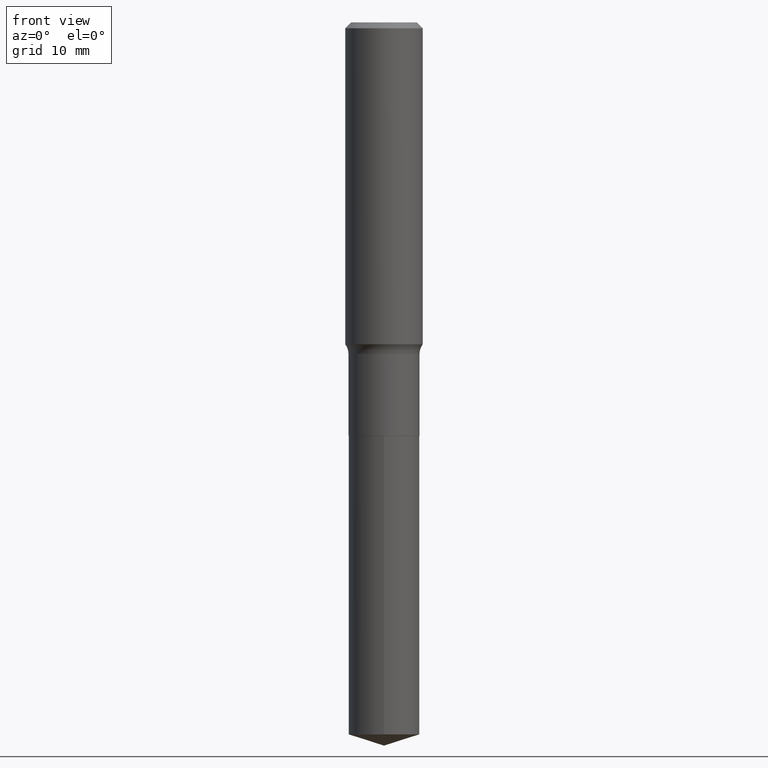
[diagram: clean part render]
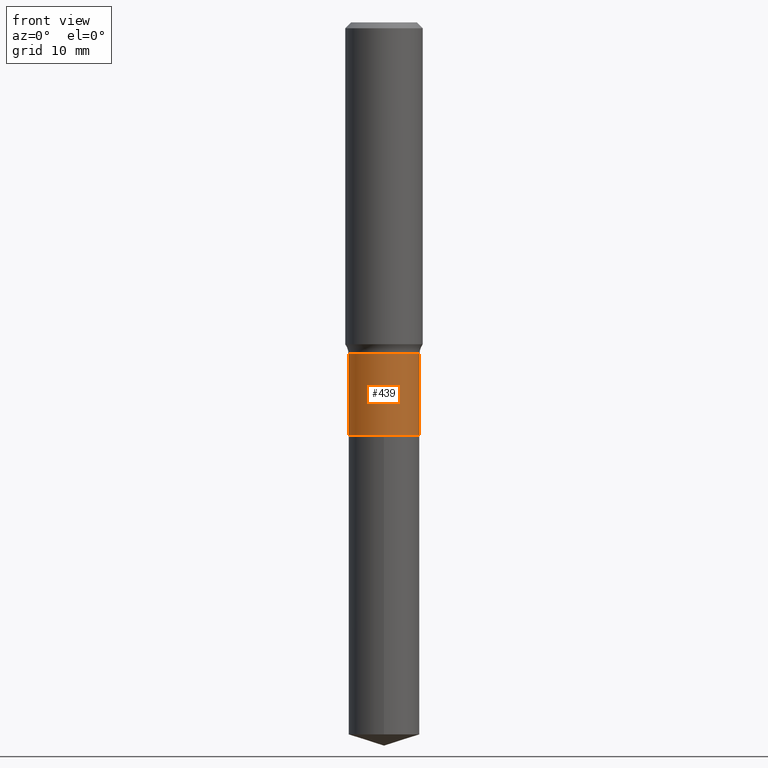
[diagram: same view with one face highlighted and labeled with its STEP entity id]
A machine part, front view. The second image highlights one B-rep face of the part: STEP entity #439.
In plain terms, the highlighted cylindrical surface (edge-blend (fillet) strip) has radius 4.3663 mm, axis along (-0, 0, 1).
Its self-contained STEP definition (entity closure, byte-faithful):
#4 = DIRECTION ( 'NONE',  ( 1.000000000000000000, -6.982962677686268288E-15, 0.000000000000000000 ) ) ;
#19 = VERTEX_POINT ( 'NONE', #367 ) ;
#27 = CARTESIAN_POINT ( 'NONE',  ( 0.000000000000000000, 0.000000000000000000, 0.000000000000000000 ) ) ;
#35 = DIRECTION ( 'NONE',  ( -2.445468806185136877E-29, 3.491481338843145188E-15, 1.000000000000000000 ) ) ;
#53 = CIRCLE ( 'NONE', #327, 0.1718999999999999695 ) ;
#58 = CARTESIAN_POINT ( 'NONE',  ( -0.1718999999999999417, 1.221422962771611806E-15, -8.455649420148180377E-30 ) ) ;
#79 = ORIENTED_EDGE ( 'NONE', *, *, #213, .T. ) ;
#88 = CARTESIAN_POINT ( 'NONE',  ( 0.1718999999999999417, -1.200371284294268847E-15, 8.382147877593211677E-30 ) ) ;
#97 = DIRECTION ( 'NONE',  ( -2.445468806185136877E-29, 3.491481338843145188E-15, 1.000000000000000000 ) ) ;
#137 = ORIENTED_EDGE ( 'NONE', *, *, #287, .T. ) ;
#144 = VECTOR ( 'NONE', #97, 39.37007874015748143 ) ;
#148 = VERTEX_POINT ( 'NONE', #214 ) ;
#151 = AXIS2_PLACEMENT_3D ( 'NONE', #160, #273, #268 ) ;
#160 = CARTESIAN_POINT ( 'NONE',  ( 3.923999246404669862E-29, -5.602430956307710923E-15, -1.604599999999999804 ) ) ;
#200 = VERTEX_POINT ( 'NONE', #265 ) ;
#201 = CARTESIAN_POINT ( 'NONE',  ( 4.889714877967179832E-29, -6.981216937016868873E-15, -1.999499999999999833 ) ) ;
#213 = EDGE_CURVE ( 'NONE', #19, #148, #53, .T. ) ;
#214 = CARTESIAN_POINT ( 'NONE',  ( 0.1718999999999999695, -8.181588221311138114E-15, -1.999499999999999833 ) ) ;
#223 = DIRECTION ( 'NONE',  ( -2.445468806185136597E-29, 3.491481338843145583E-15, 1.000000000000000000 ) ) ;
#225 = CARTESIAN_POINT ( 'NONE',  ( -0.1718999999999999417, -5.070400983890677303E-15, -1.604599999999999804 ) ) ;
#228 = EDGE_CURVE ( 'NONE', #281, #200, #335, .T. ) ;
#265 = CARTESIAN_POINT ( 'NONE',  ( 0.1718999999999999417, -6.802802240601980164E-15, -1.604599999999999804 ) ) ;
#268 = DIRECTION ( 'NONE',  ( 1.000000000000000000, -6.982962677686269077E-15, 0.000000000000000000 ) ) ;
#273 = DIRECTION ( 'NONE',  ( -2.445468806185136597E-29, 3.491481338843145583E-15, 1.000000000000000000 ) ) ;
#277 = AXIS2_PLACEMENT_3D ( 'NONE', #27, #223, #443 ) ;
#281 = VERTEX_POINT ( 'NONE', #225 ) ;
#287 = EDGE_CURVE ( 'NONE', #148, #200, #379, .T. ) ;
#291 = FACE_OUTER_BOUND ( 'NONE', #427, .T. ) ;
#301 = DIRECTION ( 'NONE',  ( -2.445468806185136597E-29, 3.491481338843145583E-15, 1.000000000000000000 ) ) ;
#308 = VECTOR ( 'NONE', #35, 39.37007874015748143 ) ;
#327 = AXIS2_PLACEMENT_3D ( 'NONE', #201, #301, #4 ) ;
#332 = EDGE_CURVE ( 'NONE', #19, #281, #433, .T. ) ;
#335 = CIRCLE ( 'NONE', #151, 0.1718999999999999417 ) ;
#367 = CARTESIAN_POINT ( 'NONE',  ( -0.1718999999999999695, -5.070400983890676515E-15, -1.999499999999999833 ) ) ;
#379 = LINE ( 'NONE', #88, #308 ) ;
#427 = EDGE_LOOP ( 'NONE', ( #447, #79, #137, #437 ) ) ;
#433 = LINE ( 'NONE', #58, #144 ) ;
#437 = ORIENTED_EDGE ( 'NONE', *, *, #228, .F. ) ;
#439 = ADVANCED_FACE ( 'NONE', ( #291 ), #474, .T. ) ;
#443 = DIRECTION ( 'NONE',  ( 1.000000000000000000, -6.982962677686266711E-15, 4.876176775795936353E-29 ) ) ;
#447 = ORIENTED_EDGE ( 'NONE', *, *, #332, .F. ) ;
#474 = CYLINDRICAL_SURFACE ( 'NONE', #277, 0.1718999999999999417 ) ;